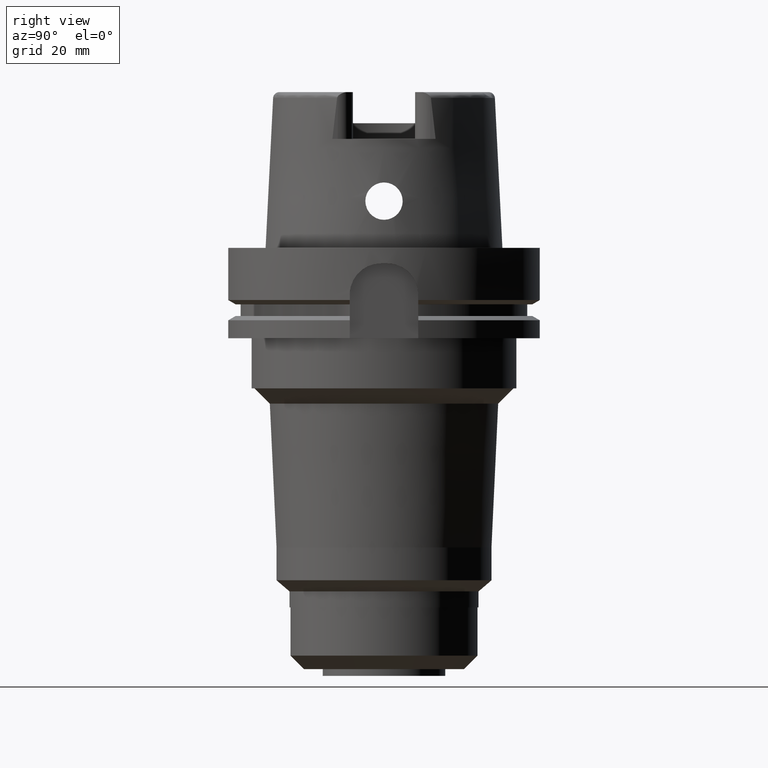
[diagram: clean part render]
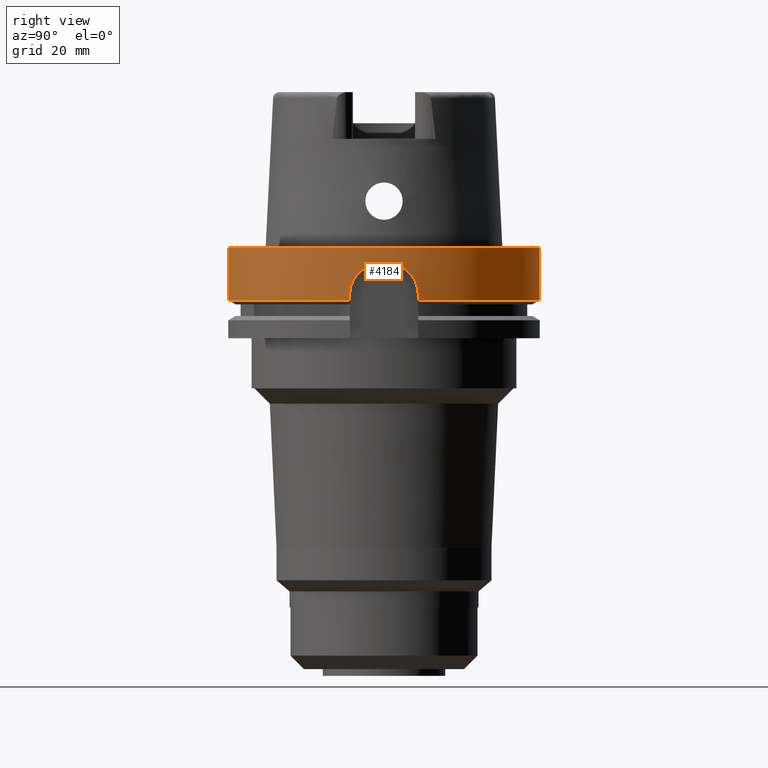
[diagram: same view with one face highlighted and labeled with its STEP entity id]
A machine part, right view. The second image highlights one B-rep face of the part: STEP entity #4184.
In plain terms, the highlighted cylindrical surface (partial cylindrical patch) has radius 50 mm, axis along (0, 0, -1).
Its self-contained STEP definition (entity closure, byte-faithful):
#1655=DIRECTION('',(0.E0,2.926591706721E-14,-1.E0));
#1656=VECTOR('',#1655,1.675240473581E1);
#1657=CARTESIAN_POINT('',(0.E0,-5.E1,6.631732200428E-14));
#1658=LINE('',#1657,#1656);
#1718=CARTESIAN_POINT('',(4.877499359303E1,1.1E1,-1.675240473581E1));
#1723=CARTESIAN_POINT('',(0.E0,1.011084288786E-14,-1.675240473581E1));
#1724=DIRECTION('',(0.E0,0.E0,1.E0));
#1725=DIRECTION('',(9.754998718606E-1,2.2E-1,0.E0));
#1726=AXIS2_PLACEMENT_3D('',#1723,#1724,#1725);
#1857=CARTESIAN_POINT('',(4.998999899980E1,-1.E0,-5.E0));
#1858=CARTESIAN_POINT('',(4.997504302493E1,-1.747649168730E0,-5.E0));
#1859=CARTESIAN_POINT('',(4.991291515628E1,-3.209086509423E0,
-5.162327574618E0));
#1860=CARTESIAN_POINT('',(4.972649889988E1,-5.357683400678E0,
-5.904332168309E0));
#1861=CARTESIAN_POINT('',(4.947875379221E1,-7.274178778831E0,
-7.105067191504E0));
#1862=CARTESIAN_POINT('',(4.921266902518E1,-8.876814017748E0,
-8.703269130081E0));
#1863=CARTESIAN_POINT('',(4.897589080631E1,-1.008412640434E1,
-1.061693835059E1));
#1864=CARTESIAN_POINT('',(4.881255512035E1,-1.083556007766E1,
-1.277678086102E1));
#1865=CARTESIAN_POINT('',(4.877499359303E1,-1.1E1,-1.424649568712E1));
#1866=CARTESIAN_POINT('',(4.877499359303E1,-1.1E1,-1.5E1));
#1871=DIRECTION('',(-5.027793947017E-13,6.892943314459E-14,-1.E0));
#1872=VECTOR('',#1871,1.752404735809E0);
#1873=CARTESIAN_POINT('',(4.877499359303E1,-1.1E1,-1.5E1));
#1874=LINE('',#1873,#1872);
#1878=DIRECTION('',(0.E0,-2.926591706721E-14,-1.E0));
#1879=VECTOR('',#1878,1.675240473581E1);
#1880=CARTESIAN_POINT('',(0.E0,5.E1,6.631732200428E-14));
#1881=LINE('',#1880,#1879);
#1885=DIRECTION('',(4.987247221638E-13,7.602511008594E-14,1.E0));
#1886=VECTOR('',#1885,1.752404735809E0);
#1887=CARTESIAN_POINT('',(4.877499359303E1,1.1E1,-1.675240473581E1));
#1888=LINE('',#1887,#1886);
#1892=CARTESIAN_POINT('',(4.877499359303E1,1.1E1,-1.5E1));
#1893=CARTESIAN_POINT('',(4.877499359303E1,1.1E1,-1.425448394895E1));
#1894=CARTESIAN_POINT('',(4.881177750238E1,1.083892598587E1,-1.279803579726E1));
#1895=CARTESIAN_POINT('',(4.897257892093E1,1.009974253578E1,-1.065171418896E1));
#1896=CARTESIAN_POINT('',(4.920736579735E1,8.905515148256E0,-8.739945320208E0));
#1897=CARTESIAN_POINT('',(4.947305107059E1,7.312330662648E0,-7.135441291622E0));
#1898=CARTESIAN_POINT('',(4.972231642752E1,5.397058718834E0,-5.922392660477E0));
#1899=CARTESIAN_POINT('',(4.991145811893E1,3.235943406486E0,-5.166828352476E0));
#1900=CARTESIAN_POINT('',(4.997483572422E1,1.758012130959E0,-5.E0));
#1901=CARTESIAN_POINT('',(4.998999899980E1,1.E0,-5.E0));
#1906=CARTESIAN_POINT('',(0.E0,1.951719603801E-14,-5.E0));
#1907=DIRECTION('',(0.E0,0.E0,1.E0));
#1908=DIRECTION('',(9.997999799960E-1,-2.E-2,0.E0));
#1909=AXIS2_PLACEMENT_3D('',#1906,#1907,#1908);
#1960=CARTESIAN_POINT('',(0.E0,1.011084288786E-14,-1.675240473581E1));
#1961=DIRECTION('',(0.E0,0.E0,1.E0));
#1962=DIRECTION('',(0.E0,-1.E0,0.E0));
#1963=AXIS2_PLACEMENT_3D('',#1960,#1961,#1962);
#2114=CARTESIAN_POINT('',(0.E0,1.951719603801E-14,9.237055564881E-14));
#2115=DIRECTION('',(0.E0,0.E0,-1.E0));
#2116=DIRECTION('',(0.E0,1.E0,0.E0));
#2117=AXIS2_PLACEMENT_3D('',#2114,#2115,#2116);
#2711=CARTESIAN_POINT('',(0.E0,-5.E1,-1.675240473581E1));
#2712=VERTEX_POINT('',#2711);
#2713=CARTESIAN_POINT('',(4.877499359303E1,-1.1E1,-1.675240473581E1));
#2714=VERTEX_POINT('',#2713);
#2715=VERTEX_POINT('',#1718);
#2716=CARTESIAN_POINT('',(0.E0,5.E1,-1.675240473581E1));
#2717=VERTEX_POINT('',#2716);
#2719=CARTESIAN_POINT('',(0.E0,5.E1,6.631732200428E-14));
#2720=VERTEX_POINT('',#2719);
#2721=CARTESIAN_POINT('',(0.E0,-5.E1,9.237055564881E-14));
#2722=VERTEX_POINT('',#2721);
#2725=CARTESIAN_POINT('',(4.998999899980E1,-1.E0,-5.E0));
#2726=CARTESIAN_POINT('',(4.998999899980E1,1.E0,-5.E0));
#2727=VERTEX_POINT('',#2725);
#2728=VERTEX_POINT('',#2726);
#2729=VERTEX_POINT('',#1866);
#2730=CARTESIAN_POINT('',(4.877499359303E1,1.1E1,-1.5E1));
#2731=VERTEX_POINT('',#2730);
#4162=CARTESIAN_POINT('',(0.E0,1.951719603801E-14,5.937E1));
#4163=DIRECTION('',(0.E0,0.E0,-1.E0));
#4164=DIRECTION('',(0.E0,-1.E0,0.E0));
#4165=AXIS2_PLACEMENT_3D('',#4162,#4163,#4164);
#4166=CYLINDRICAL_SURFACE('',#4165,5.E1);
#4168=ORIENTED_EDGE('',*,*,#4167,.F.);
#4170=ORIENTED_EDGE('',*,*,#4169,.T.);
#4171=ORIENTED_EDGE('',*,*,#3912,.T.);
#4173=ORIENTED_EDGE('',*,*,#4172,.F.);
#4174=ORIENTED_EDGE('',*,*,#4068,.F.);
#4176=ORIENTED_EDGE('',*,*,#4175,.F.);
#4177=ORIENTED_EDGE('',*,*,#4064,.T.);
#4178=ORIENTED_EDGE('',*,*,#4094,.F.);
#4179=ORIENTED_EDGE('',*,*,#3860,.T.);
#4181=ORIENTED_EDGE('',*,*,#4180,.T.);
#4182=EDGE_LOOP('',(#4168,#4170,#4171,#4173,#4174,#4176,#4177,#4178,#4179,
#4181));
#4183=FACE_OUTER_BOUND('',#4182,.F.);
#1727=CIRCLE('',#1726,5.E1);
#1867=B_SPLINE_CURVE_WITH_KNOTS('',3,(#1857,#1858,#1859,#1860,#1861,#1862,#1863,
#1864,#1865,#1866),.UNSPECIFIED.,.F.,.F.,(4,1,1,1,1,1,1,4),(0.E0,
1.428571428571E-1,2.857142857143E-1,4.285714285714E-1,5.714285714286E-1,
7.142857142857E-1,8.571428571429E-1,1.E0),.UNSPECIFIED.);
#1902=B_SPLINE_CURVE_WITH_KNOTS('',3,(#1892,#1893,#1894,#1895,#1896,#1897,#1898,
#1899,#1900,#1901),.UNSPECIFIED.,.F.,.F.,(4,1,1,1,1,1,1,4),(0.E0,
1.428571428571E-1,2.857142857143E-1,4.285714285714E-1,5.714285714286E-1,
7.142857142857E-1,8.571428571429E-1,1.E0),.UNSPECIFIED.);
#1910=CIRCLE('',#1909,5.E1);
#1964=CIRCLE('',#1963,5.E1);
#2118=CIRCLE('',#2117,5.E1);
#3860=EDGE_CURVE('',#2715,#2731,#1888,.T.);
#3912=EDGE_CURVE('',#2729,#2714,#1874,.T.);
#4064=EDGE_CURVE('',#2720,#2717,#1881,.T.);
#4068=EDGE_CURVE('',#2722,#2712,#1658,.T.);
#4094=EDGE_CURVE('',#2715,#2717,#1727,.T.);
#4167=EDGE_CURVE('',#2727,#2728,#1910,.T.);
#4169=EDGE_CURVE('',#2727,#2729,#1867,.T.);
#4172=EDGE_CURVE('',#2712,#2714,#1964,.T.);
#4175=EDGE_CURVE('',#2720,#2722,#2118,.T.);
#4180=EDGE_CURVE('',#2731,#2728,#1902,.T.);
#4184=ADVANCED_FACE('',(#4183),#4166,.T.);